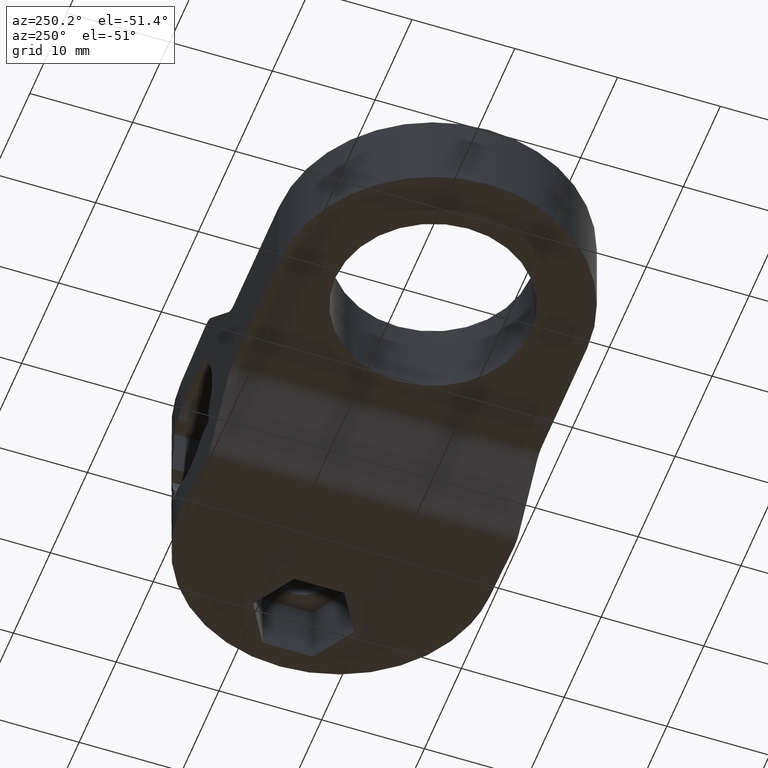
[diagram: clean part render]
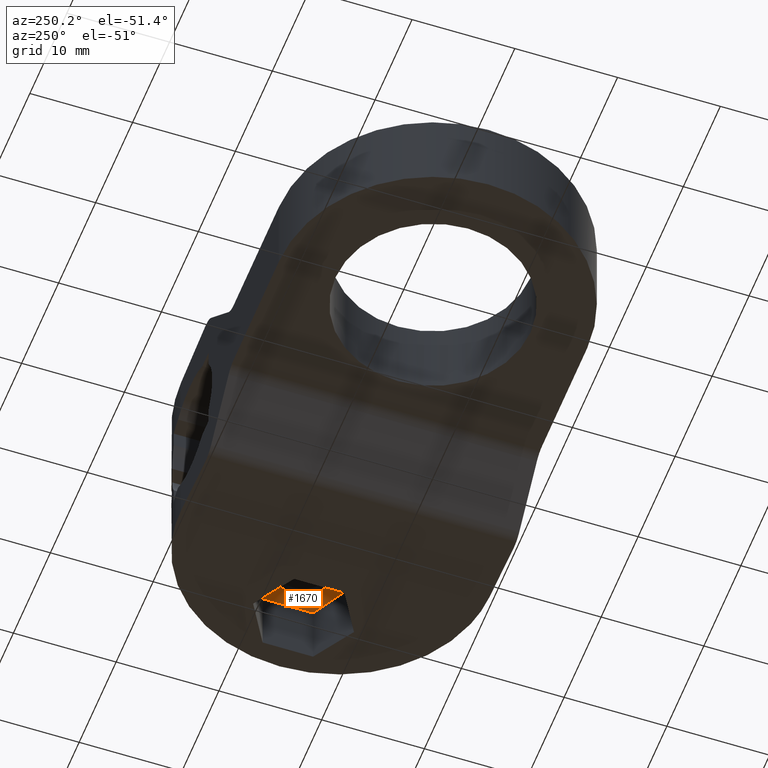
[diagram: same view with one face highlighted and labeled with its STEP entity id]
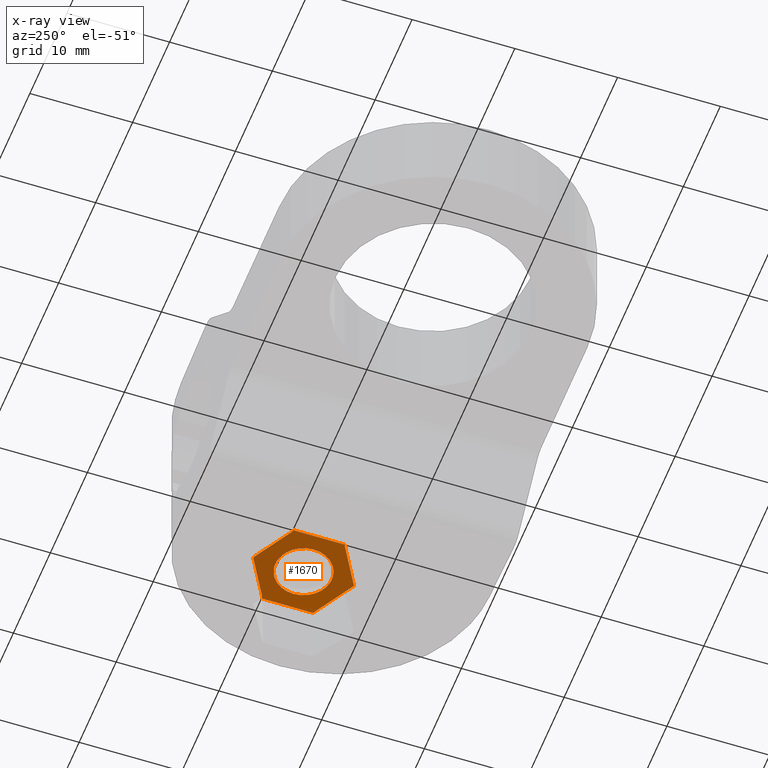
[diagram: x-ray of the same camera — body ghosted, the highlighted face saturated]
A machine part, auxiliary view. The second image highlights one B-rep face of the part: STEP entity #1670.
The next image is the same camera in x-ray: the body ghosted, the highlighted face saturated — about 72% of this face is hidden behind the body in this view.
In plain terms, the highlighted planar face has unit normal (0, 0, -1).
Its self-contained STEP definition (entity closure, byte-faithful):
#1282=CARTESIAN_POINT('',(8.249972875253775,-15.000000000000014,-1.924097203460917));
#1283=VERTEX_POINT('',#1282);
#1290=CARTESIAN_POINT('',(13.749972875253775,-15.000000000000014,-1.924097203460917));
#1291=VERTEX_POINT('',#1290);
#1292=CARTESIAN_POINT('',(10.999972875253775,-15.000000000000014,-1.924097203460917));
#1293=DIRECTION('',(-2.537653E-016,0.0,1.0));
#1294=DIRECTION('',(-1.0,0.0,-2.537653E-016));
#1295=AXIS2_PLACEMENT_3D('',#1292,#1293,#1294);
#1296=CIRCLE('',#1295,2.750000000000000);
#1297=EDGE_CURVE('',#1291,#1283,#1296,.T.);
#1299=CARTESIAN_POINT('',(10.999972875253775,-15.000000000000014,-1.924097203460917));
#1300=DIRECTION('',(-2.537653E-016,0.0,1.0));
#1301=DIRECTION('',(-1.0,0.0,-2.537653E-016));
#1302=AXIS2_PLACEMENT_3D('',#1299,#1300,#1301);
#1303=CIRCLE('',#1302,2.750000000000000);
#1304=EDGE_CURVE('',#1283,#1291,#1303,.T.);
#1514=CARTESIAN_POINT('',(15.249972875253775,-12.546261355944104,-1.924097203460924));
#1515=VERTEX_POINT('',#1514);
#1523=CARTESIAN_POINT('',(15.249972875253775,-17.453738644055925,-1.924097203460924));
#1524=VERTEX_POINT('',#1523);
#1531=CARTESIAN_POINT('',(15.249972875253775,-12.546261355944104,-1.924097203460924));
#1532=DIRECTION('',(0.0,-1.0,0.0));
#1533=VECTOR('',#1532,4.907477288111821);
#1534=LINE('',#1531,#1533);
#1535=EDGE_CURVE('',#1515,#1524,#1534,.T.);
#1547=CARTESIAN_POINT('',(10.999972875253775,-19.907477288111835,-1.924097203460924));
#1548=VERTEX_POINT('',#1547);
#1555=CARTESIAN_POINT('',(15.249972875253775,-17.453738644055925,-1.924097203460924));
#1556=DIRECTION('',(-0.866025403784439,-0.500000000000000,0.0));
#1557=VECTOR('',#1556,4.907477288111819);
#1558=LINE('',#1555,#1557);
#1559=EDGE_CURVE('',#1524,#1548,#1558,.T.);
#1571=CARTESIAN_POINT('',(6.749972875253775,-17.453738644055925,-1.924097203460931));
#1572=VERTEX_POINT('',#1571);
#1579=CARTESIAN_POINT('',(10.999972875253775,-19.907477288111835,-1.924097203460924));
#1580=DIRECTION('',(-0.866025403784439,0.500000000000000,0.0));
#1581=VECTOR('',#1580,4.907477288111819);
#1582=LINE('',#1579,#1581);
#1583=EDGE_CURVE('',#1548,#1572,#1582,.T.);
#1595=CARTESIAN_POINT('',(6.749972875253775,-12.546261355944104,-1.924097203460931));
#1596=VERTEX_POINT('',#1595);
#1603=CARTESIAN_POINT('',(6.749972875253775,-17.453738644055925,-1.924097203460931));
#1604=DIRECTION('',(0.0,1.0,0.0));
#1605=VECTOR('',#1604,4.907477288111821);
#1606=LINE('',#1603,#1605);
#1607=EDGE_CURVE('',#1572,#1596,#1606,.T.);
#1619=CARTESIAN_POINT('',(10.999972875253775,-10.092522711888193,-1.924097203460924));
#1620=VERTEX_POINT('',#1619);
#1627=CARTESIAN_POINT('',(6.749972875253775,-12.546261355944104,-1.924097203460931));
#1628=DIRECTION('',(0.866025403784439,0.500000000000000,0.0));
#1629=VECTOR('',#1628,4.907477288111819);
#1630=LINE('',#1627,#1629);
#1631=EDGE_CURVE('',#1596,#1620,#1630,.T.);
#1641=CARTESIAN_POINT('',(10.999972875253775,-10.092522711888193,-1.924097203460924));
#1642=DIRECTION('',(0.866025403784439,-0.500000000000000,0.0));
#1643=VECTOR('',#1642,4.907477288111819);
#1644=LINE('',#1641,#1643);
#1645=EDGE_CURVE('',#1620,#1515,#1644,.T.);
#1653=CARTESIAN_POINT('',(16.100660665226485,-9.110339464293254,-1.924097203460917));
#1654=DIRECTION('',(0.0,0.0,-1.0));
#1655=DIRECTION('',(0.0,-1.0,0.0));
#1656=AXIS2_PLACEMENT_3D('',#1653,#1654,#1655);
#1657=PLANE('',#1656);
#1658=ORIENTED_EDGE('',*,*,#1535,.T.);
#1659=ORIENTED_EDGE('',*,*,#1559,.T.);
#1660=ORIENTED_EDGE('',*,*,#1583,.T.);
#1661=ORIENTED_EDGE('',*,*,#1607,.T.);
#1662=ORIENTED_EDGE('',*,*,#1631,.T.);
#1663=ORIENTED_EDGE('',*,*,#1645,.T.);
#1664=EDGE_LOOP('',(#1658,#1659,#1660,#1661,#1662,#1663));
#1665=FACE_OUTER_BOUND('',#1664,.T.);
#1666=ORIENTED_EDGE('',*,*,#1304,.T.);
#1667=ORIENTED_EDGE('',*,*,#1297,.T.);
#1668=EDGE_LOOP('',(#1666,#1667));
#1669=FACE_BOUND('',#1668,.T.);
#1670=ADVANCED_FACE('',(#1665,#1669),#1657,.T.);